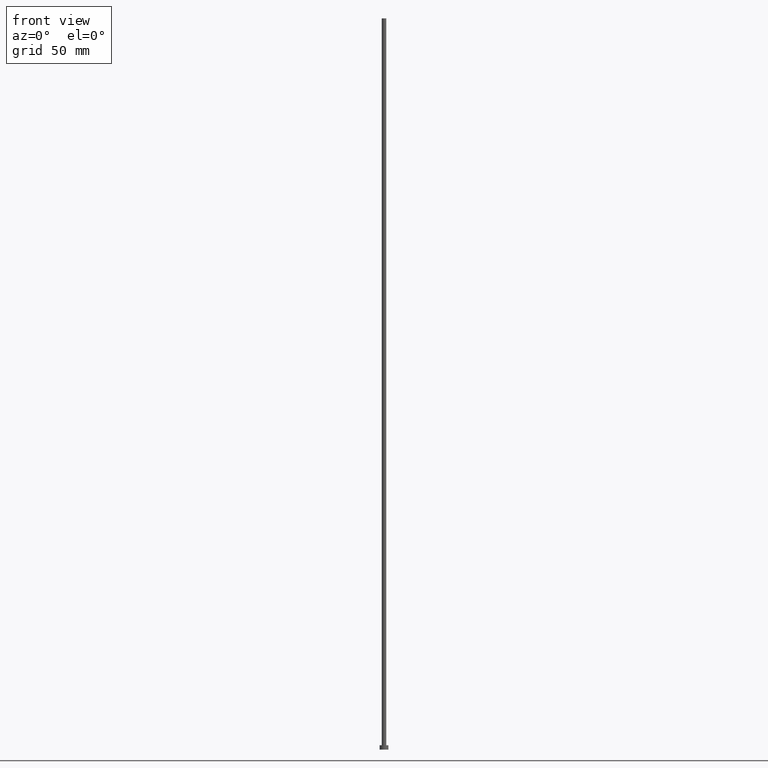
[diagram: clean part render]
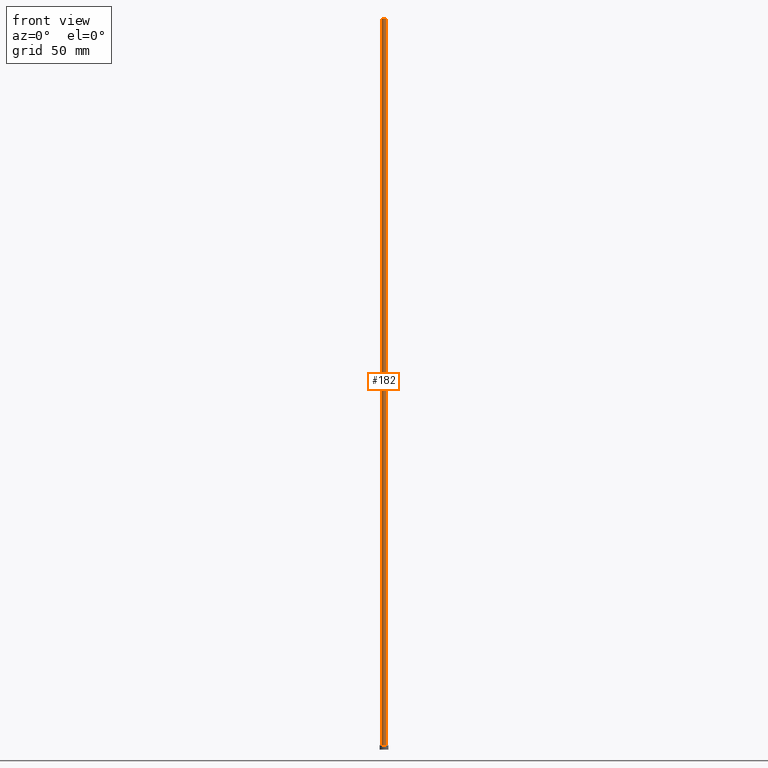
[diagram: same view with one face highlighted and labeled with its STEP entity id]
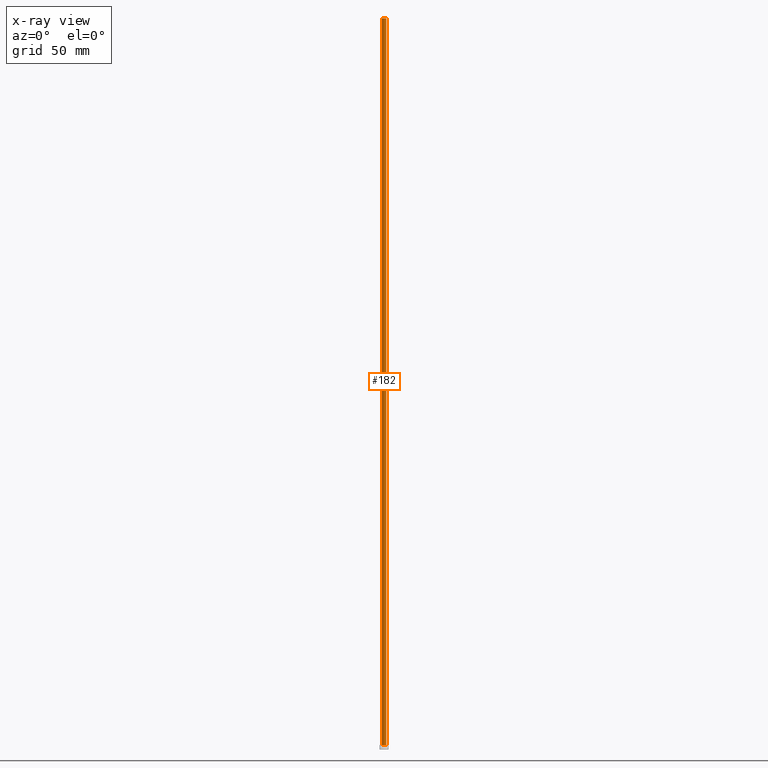
[diagram: x-ray of the same camera — body ghosted, the highlighted face saturated]
A machine part, front view. The second image highlights one B-rep face of the part: STEP entity #182.
The next image is the same camera in x-ray: the body ghosted, the highlighted face saturated — about 0% of this face is hidden behind the body in this view.
In plain terms, the highlighted cylindrical surface (edge-blend (fillet) strip) has radius 1.5 mm, axis along (-0, -0, -1).
Its self-contained STEP definition (entity closure, byte-faithful):
#4 = CARTESIAN_POINT ( 'NONE',  ( 1.500000000000000222, 1.836970198721029934E-16, 500.0000000000000000 ) ) ;
#19 = VERTEX_POINT ( 'NONE', #38 ) ;
#23 = DIRECTION ( 'NONE',  ( -1.000000000000000000, 0.000000000000000000, 0.000000000000000000 ) ) ;
#32 = VECTOR ( 'NONE', #199, 1000.000000000000000 ) ;
#38 = CARTESIAN_POINT ( 'NONE',  ( 1.500000000000000222, 1.836970198721029934E-16, 500.0000000000000000 ) ) ;
#40 = CARTESIAN_POINT ( 'NONE',  ( 0.000000000000000000, 0.000000000000000000, 500.0000000000000000 ) ) ;
#46 = FACE_OUTER_BOUND ( 'NONE', #240, .T. ) ;
#55 = EDGE_CURVE ( 'NONE', #132, #184, #162, .T. ) ;
#58 = LINE ( 'NONE', #174, #204 ) ;
#59 = CARTESIAN_POINT ( 'NONE',  ( -1.500000000000000222, 0.000000000000000000, 3.000000000000000000 ) ) ;
#61 = CARTESIAN_POINT ( 'NONE',  ( 0.000000000000000000, 0.000000000000000000, 500.0000000000000000 ) ) ;
#74 = CARTESIAN_POINT ( 'NONE',  ( 1.500000000000000222, 1.836970198721029934E-16, 3.000000000000000000 ) ) ;
#77 = ORIENTED_EDGE ( 'NONE', *, *, #192, .F. ) ;
#78 = LINE ( 'NONE', #4, #32 ) ;
#79 = CYLINDRICAL_SURFACE ( 'NONE', #212, 1.500000000000000222 ) ;
#86 = CIRCLE ( 'NONE', #175, 1.500000000000000222 ) ;
#89 = ORIENTED_EDGE ( 'NONE', *, *, #55, .T. ) ;
#99 = CARTESIAN_POINT ( 'NONE',  ( -1.500000000000000222, 0.000000000000000000, 500.0000000000000000 ) ) ;
#102 = ORIENTED_EDGE ( 'NONE', *, *, #200, .T. ) ;
#119 = DIRECTION ( 'NONE',  ( 1.000000000000000000, 0.000000000000000000, 0.000000000000000000 ) ) ;
#132 = VERTEX_POINT ( 'NONE', #59 ) ;
#140 = DIRECTION ( 'NONE',  ( 0.000000000000000000, 0.000000000000000000, 1.000000000000000000 ) ) ;
#162 = CIRCLE ( 'NONE', #188, 1.500000000000000222 ) ;
#164 = DIRECTION ( 'NONE',  ( 1.000000000000000000, 0.000000000000000000, 0.000000000000000000 ) ) ;
#166 = DIRECTION ( 'NONE',  ( 0.000000000000000000, 0.000000000000000000, 1.000000000000000000 ) ) ;
#174 = CARTESIAN_POINT ( 'NONE',  ( -1.500000000000000222, 0.000000000000000000, 500.0000000000000000 ) ) ;
#175 = AXIS2_PLACEMENT_3D ( 'NONE', #61, #166, #119 ) ;
#180 = CARTESIAN_POINT ( 'NONE',  ( 0.000000000000000000, 0.000000000000000000, 3.000000000000000000 ) ) ;
#182 = ADVANCED_FACE ( 'NONE', ( #46 ), #79, .T. ) ;
#184 = VERTEX_POINT ( 'NONE', #74 ) ;
#188 = AXIS2_PLACEMENT_3D ( 'NONE', #180, #140, #164 ) ;
#192 = EDGE_CURVE ( 'NONE', #19, #184, #78, .T. ) ;
#193 = ORIENTED_EDGE ( 'NONE', *, *, #210, .F. ) ;
#195 = VERTEX_POINT ( 'NONE', #99 ) ;
#199 = DIRECTION ( 'NONE',  ( -0.000000000000000000, -0.000000000000000000, -1.000000000000000000 ) ) ;
#200 = EDGE_CURVE ( 'NONE', #195, #132, #58, .T. ) ;
#204 = VECTOR ( 'NONE', #234, 1000.000000000000000 ) ;
#210 = EDGE_CURVE ( 'NONE', #195, #19, #86, .T. ) ;
#212 = AXIS2_PLACEMENT_3D ( 'NONE', #40, #238, #23 ) ;
#234 = DIRECTION ( 'NONE',  ( -0.000000000000000000, -0.000000000000000000, -1.000000000000000000 ) ) ;
#238 = DIRECTION ( 'NONE',  ( -0.000000000000000000, -0.000000000000000000, -1.000000000000000000 ) ) ;
#240 = EDGE_LOOP ( 'NONE', ( #77, #193, #102, #89 ) ) ;